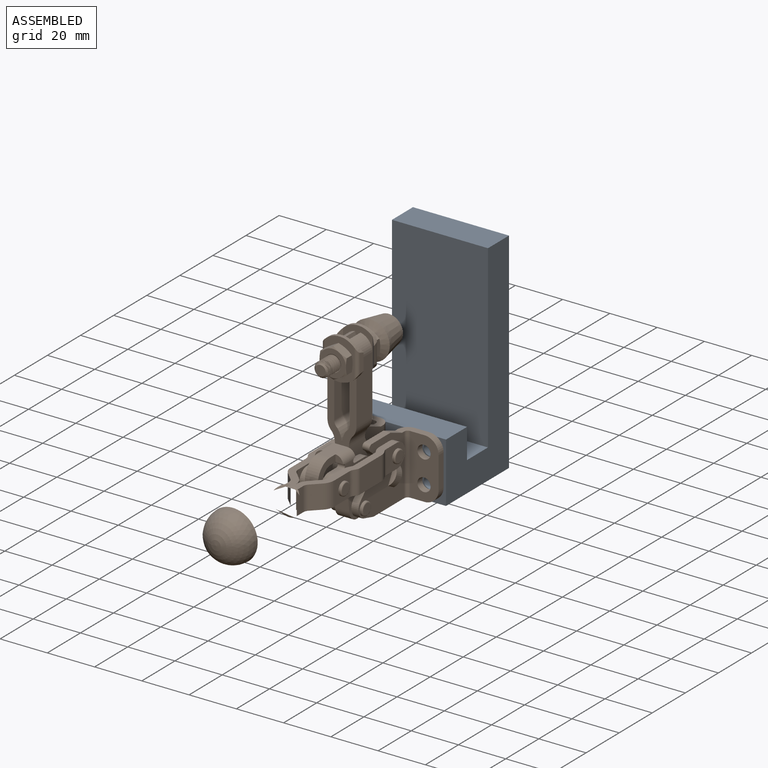
[diagram: assembled view]
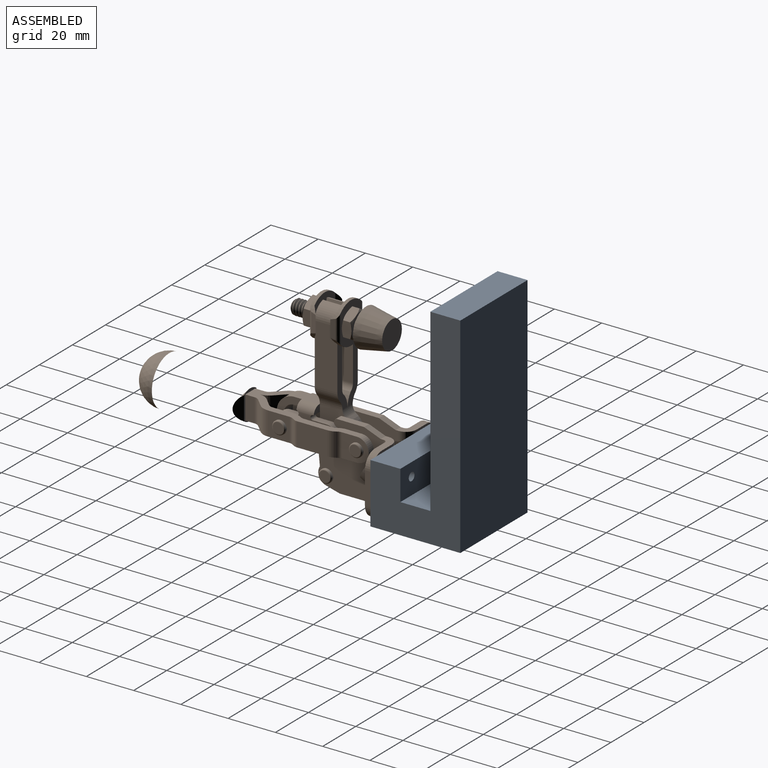
[diagram: assembled view, second angle]
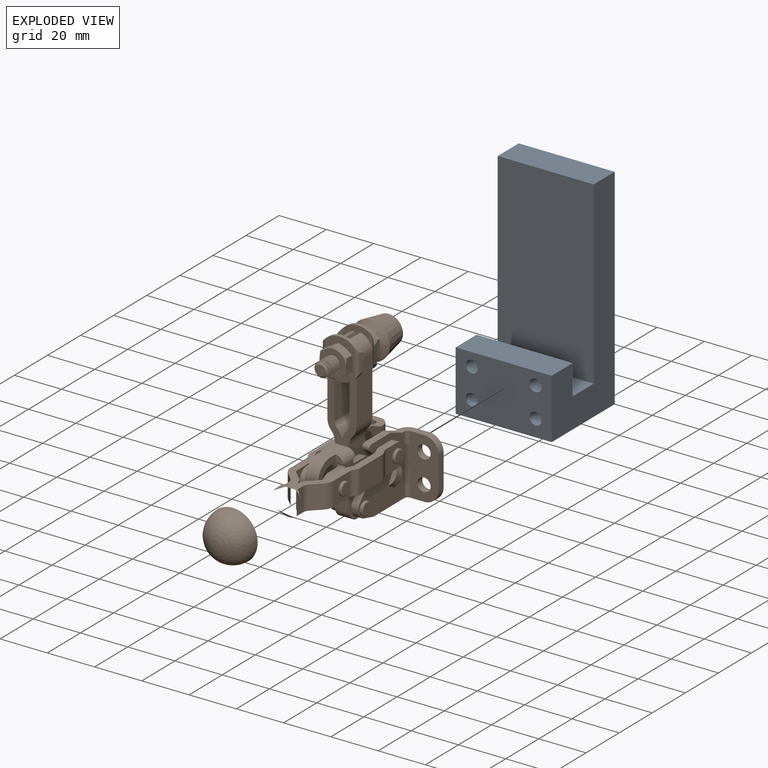
[diagram: exploded view]
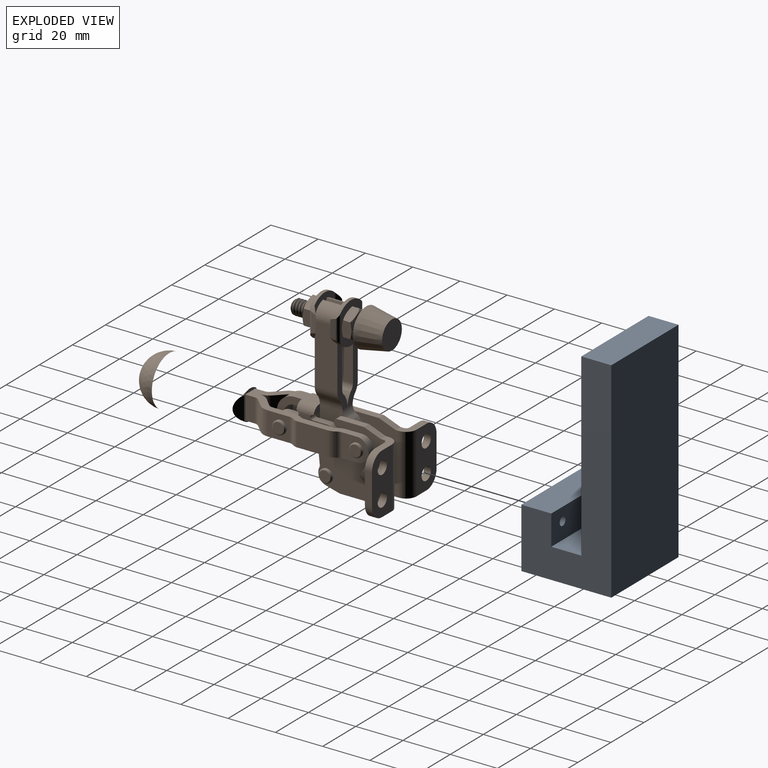
[diagram: exploded view, second angle]
ASSEMBLY  parts=2 mates=2
PART A: 18 faces, bbox 38.1x40.6x88.9 mm
  f0: plane 40.64x38.07mm, normal (0,0,-1), area 1547.3mm2, adj f1,f7,f8,f9
  f1: plane 88.9x40.64mm, normal (1,0,0), area 3612.9mm2, adj f0,f2,f8,f9
  f2: plane 40.64x12.69mm, normal (0,0,1), area 515.8mm2, adj f1,f3,f8,f9
  f3: plane 76.2x40.64mm, normal (-1,0,0), area 3096.8mm2, adj f2,f4,f8,f9
  f4: plane 40.64x12.69mm, normal (0,0,1), area 515.8mm2, adj f3,f5,f8,f9
  f5: plane 40.64x12.7mm, normal (1,0,0), area 497.5mm2, adj f4,f6,f8,f9,f10,f12
  f6: plane 40.64x12.69mm, normal (0,0,1), area 515.8mm2, adj f5,f7,f8,f9
  f7: plane 40.64x25.4mm, normal (-1,0,0), area 950.4mm2, adj f0,f6,f8,f9,f11,f13,f15,f17
  f8: plane 88.9x38.07mm, normal (0,-1,0), area 1611.8mm2, adj f0,f1,f2,f3,f4,f5,f6,f7
  f9: plane 88.9x38.07mm, normal (0,1,0), area 1611.8mm2, adj f0,f1,f2,f3,f4,f5,f6,f7
  f10: cone r=0mm half-angle=59deg, axis (-1,0,0), area 13mm2, adj f5,f11
  f11: cylinder r=2.55mm len=12.19mm, axis (-1,0,0), area 195.5mm2, adj f7,f10
  f12: cone r=0mm half-angle=59deg, axis (-1,0,0), area 13mm2, adj f5,f13
  f13: cylinder r=2.55mm len=12.19mm, axis (-1,0,0), area 195.5mm2, adj f7,f12
  f14: cone r=0mm half-angle=59deg, axis (-1,0,0), area 23.9mm2, adj f15
  f15: cylinder r=2.55mm len=12.19mm, axis (-1,0,0), area 195.5mm2, adj f7,f14
  f16: cone r=0mm half-angle=59deg, axis (-1,0,0), area 23.9mm2, adj f17
  f17: cylinder r=2.55mm len=12.19mm, axis (-1,0,0), area 195.5mm2, adj f7,f16
PART B: 289 faces, bbox 39.5x72.5x110.5 mm
  f0: plane 17.5x12.51mm, normal (0,0,-1), area 100.4mm2, adj f6,f7,f13,f14,f277,f278,f279,f280
  f1: plane 6.99x6.99mm, normal (0,0,-1), area 3.1mm2, adj f3,f78
  f2: plane 14.97x12.45mm, normal (0,0,1), area 42.6mm2, adj f3,f10,f12,f13,f14,f90,f91,f92
  f3: cylinder r=3.35mm len=6.7mm, axis (0,0,-1), area 31.6mm2, adj f1,f2,f11,f264,f266
  f4: plane 12x1.64mm, normal (0.71,0,0.71), area 22.8mm2, adj f5,f12,f13,f14
  f5: plane 8.23x1.98mm, normal (-0.99,0,-0.14), area 14.7mm2, adj f4,f6,f13,f14
  f6: cylinder r=1.5mm len=12.23mm, axis (0,-1,0), area 21.9mm2, adj f0,f5,f13,f14
  f7: cylinder r=1.5mm len=12.23mm, axis (0,-1,0), area 21.9mm2, adj f0,f8,f13,f14
  f8: plane 8.23x1.98mm, normal (0.99,0,-0.14), area 14.7mm2, adj f7,f9,f13,f14
  f9: plane 12x1.64mm, normal (-0.71,0,0.71), area 22.8mm2, adj f8,f10,f13,f14
  f10: cylinder r=0.2mm len=12.29mm, axis (0,-1,0), area 1.9mm2, adj f2,f9,f13,f14
  f11: plane 7.94x6.5mm, normal (0,0,1), area 38mm2, adj f3,f13,f94,f99
  f12: cylinder r=0.2mm len=12.29mm, axis (0,-1,0), area 1.9mm2, adj f2,f4,f13,f14
  f13: cylinder r=8.75mm len=16.02mm, axis (0,0,1), area 31.5mm2, adj f0,f2,f4,f5,f6,f7,f8,f9
  f14: cylinder r=8.75mm len=16.02mm, axis (0,0,1), area 31.5mm2, adj f0,f2,f4,f5,f6,f7,f8,f9
  f15: cylinder r=2.78mm len=5.56mm, axis (1,0,0), area 11.7mm2, adj f16,f51
  f16: torus R=2.28mm, axis (1,0,0), area 12.8mm2, adj f15,f17
  f17: plane 4.56x4.56mm, normal (-1,0,0), area 16.3mm2, adj f16
  f18: cylinder r=2.78mm len=5.56mm, axis (1,0,0), area 11.7mm2, adj f19,f38
  f19: torus R=2.28mm, axis (1,0,0), area 12.8mm2, adj f18,f20
  f20: plane 4.56x4.56mm, normal (1,0,0), area 16.3mm2, adj f19
  f21: plane 11.45x10mm, normal (1,0,0), area 95.7mm2, adj f22,f52,f201,f254,f257
  f22: cylinder r=6mm len=10mm, axis (0,1,0), area 31.4mm2, adj f21,f53,f254,f257
  f23: plane 12.78x10mm, normal (1,0,0), area 127.8mm2, adj f54,f55,f254,f257
  f24: cylinder r=6mm len=10mm, axis (0,1,0), area 31.4mm2, adj f25,f56,f254,f257
  f25: plane 10x9.25mm, normal (1,0,0), area 84.6mm2, adj f24,f26,f210,f254,f257
  f26: cylinder r=3mm len=10mm, axis (0,1,0), area 23.6mm2, adj f25,f27,f254,f257
  f27: plane 10x3.56mm, normal (0.71,0,-0.71), area 50.4mm2, adj f26,f28,f254,f257
  f28: cylinder r=6mm len=10mm, axis (0,1,0), area 47.1mm2, adj f27,f29,f254,f257
  f29: cylinder r=6mm len=10mm, axis (0,1,0), area 47.1mm2, adj f28,f30,f254,f257
  f30: plane 10x3.56mm, normal (-0.71,0,-0.71), area 50.4mm2, adj f29,f31,f254,f257
  f31: cylinder r=3mm len=10mm, axis (0,1,0), area 23.6mm2, adj f30,f32,f254,f257
  f32: plane 10x9.25mm, normal (-1,0,0), area 84.6mm2, adj f31,f33,f211,f254,f257
  f33: cylinder r=6mm len=10mm, axis (0,1,0), area 31.4mm2, adj f32,f57,f254,f257
  f34: plane 12.78x10mm, normal (-1,0,0), area 127.8mm2, adj f58,f59,f254,f257
  f35: cylinder r=6mm len=10mm, axis (0,1,0), area 31.4mm2, adj f36,f60,f254,f257
  f36: plane 11.45x10mm, normal (-1,0,0), area 95.7mm2, adj f35,f37,f186,f254,f257
  f37: cylinder r=5mm len=10mm, axis (-1,0,0), area 47.1mm2, adj f36,f38,f254,f257
  f38: plane 11.45x10mm, normal (1,0,0), area 79.5mm2, adj f18,f37,f61,f254,f257
  f39: cylinder r=6mm len=10mm, axis (0,1,0), area 31.4mm2, adj f40,f62,f254,f257
  f40: plane 12.84x10mm, normal (1,0,0), area 128.4mm2, adj f39,f63,f254,f257
  f41: plane 10x9.25mm, normal (1,0,0), area 68.3mm2, adj f42,f64,f65,f254,f257
  f42: cylinder r=6mm len=10mm, axis (0,1,0), area 47.1mm2, adj f41,f43,f254,f257
  f43: plane 10x3.56mm, normal (0.71,0,0.71), area 50.4mm2, adj f42,f44,f254,f257
  f44: cylinder r=3mm len=10mm, axis (0,1,0), area 23.6mm2, adj f43,f254,f255,f257
  f45: cylinder r=3mm len=10mm, axis (0,1,0), area 23.6mm2, adj f46,f254,f256,f257
  f46: plane 10x3.56mm, normal (-0.71,0,0.71), area 50.4mm2, adj f45,f47,f254,f257
  f47: cylinder r=6mm len=10mm, axis (0,1,0), area 47.1mm2, adj f46,f48,f254,f257
  f48: plane 10x9.25mm, normal (-1,0,0), area 68.3mm2, adj f47,f66,f67,f254,f257
  f49: plane 12.84x10mm, normal (-1,0,0), area 128.4mm2, adj f50,f68,f254,f257
  f50: cylinder r=6mm len=10mm, axis (0,1,0), area 31.4mm2, adj f49,f69,f254,f257
  f51: plane 11.45x10mm, normal (-1,0,0), area 79.5mm2, adj f15,f52,f70,f254,f257
  f52: cylinder r=5mm len=10mm, axis (-1,0,0), area 47.1mm2, adj f21,f51,f254,f257
  f53: plane 10x1.15mm, normal (0.87,0,0.5), area 13.3mm2, adj f22,f55,f254,f257
  f54: cylinder r=3mm len=10mm, axis (0,1,0), area 15.7mm2, adj f23,f56,f254,f257
  f55: cylinder r=0.25mm len=10mm, axis (0,1,0), area 1.3mm2, adj f23,f53,f254,f257
  f56: plane 10x0.51mm, normal (0.87,0,-0.5), area 5.9mm2, adj f24,f54,f254,f257
  f57: plane 10x0.51mm, normal (-0.87,0,-0.5), area 5.9mm2, adj f33,f59,f254,f257
  f58: cylinder r=0.25mm len=10mm, axis (0,1,0), area 1.3mm2, adj f34,f60,f254,f257
  f59: cylinder r=3mm len=10mm, axis (0,1,0), area 15.7mm2, adj f34,f57,f254,f257
  f60: plane 10x1.15mm, normal (-0.87,0,0.5), area 13.3mm2, adj f35,f58,f254,f257
  f61: cylinder r=3mm len=10mm, axis (0,1,0), area 15.7mm2, adj f38,f62,f254,f257
  f62: plane 10x0.51mm, normal (0.87,0,-0.5), area 5.9mm2, adj f39,f61,f254,f257
  f63: cylinder r=3mm len=10mm, axis (0,1,0), area 15.7mm2, adj f40,f71,f254,f257
  f64: cylinder r=2.78mm len=5.56mm, axis (1,0,0), area 11.7mm2, adj f41,f72
  f65: cylinder r=3mm len=10mm, axis (0,1,0), area 15.7mm2, adj f41,f71,f254,f257
  f66: cylinder r=2.78mm len=5.56mm, axis (1,0,0), area 11.7mm2, adj f48,f73
  f67: cylinder r=3mm len=10mm, axis (0,1,0), area 15.7mm2, adj f48,f74,f254,f257
  f68: cylinder r=3mm len=10mm, axis (0,1,0), area 15.7mm2, adj f49,f74,f254,f257
  f69: plane 10x0.51mm, normal (-0.87,0,-0.5), area 5.9mm2, adj f50,f70,f254,f257
  f70: cylinder r=3mm len=10mm, axis (0,1,0), area 15.7mm2, adj f51,f69,f254,f257
  f71: plane 10x1.21mm, normal (0.87,0,0.5), area 13.9mm2, adj f63,f65,f254,f257
  f72: torus R=2.28mm, axis (1,0,0), area 12.8mm2, adj f64,f75
  f73: torus R=2.28mm, axis (1,0,0), area 12.8mm2, adj f66,f76
  f74: plane 10x1.21mm, normal (-0.87,0,0.5), area 13.9mm2, adj f67,f68,f254,f257
  f75: plane 4.56x4.56mm, normal (1,0,0), area 16.3mm2, adj f72
  f76: plane 4.56x4.56mm, normal (-1,0,0), area 16.3mm2, adj f73
  f77: plane 6.84x6.8mm, normal (0,0,1), area 7.4mm2, adj f79,f146,f147,f148
  f78: cone r=3.49mm half-angle=60deg, axis (0,0,1), area 7.7mm2, adj f1,f79,f151
  f79: cylinder r=3.17mm len=6.35mm, axis (0,0,-1), area 54.9mm2, adj f77,f78,f147,f148
  f80: cylinder r=1.6mm len=6mm, axis (1,0,0), area 32.8mm2, adj f153,f154,f253
  f81: cylinder r=6.2mm len=9.63mm, axis (0,0,1), area 39.5mm2, adj f82,f89,f106,f153,f263
  f82: cylinder r=4mm len=6.04mm, axis (-1,0,0), area 23mm2, adj f81,f83,f96,f97,f105,f153,f154,f155
  f83: cylinder r=8mm len=9.08mm, axis (-1,0,0), area 61.5mm2, adj f82,f84,f155,f166
  f84: plane 14.49x6mm, normal (0,0.32,-0.95), area 91.6mm2, adj f83,f85,f155,f166
  f85: cylinder r=4.8mm len=9.33mm, axis (-1,0,0), area 78.4mm2, adj f84,f86,f153,f154,f155,f166
  f86: plane 15.48x6mm, normal (0,0.1,1), area 93.3mm2, adj f85,f87,f153,f154
  f87: cylinder r=5mm len=6mm, axis (-1,0,0), area 19.9mm2, adj f86,f88,f153,f154
  f88: cylinder r=4mm len=6mm, axis (-1,0,0), area 13.6mm2, adj f87,f106,f153,f154
  f89: cylinder r=6.15mm len=9.6mm, axis (0,0,1), area 46.8mm2, adj f81,f90,f106,f263
  f90: plane 25.05x9.6mm, normal (-1,0,0), area 240.5mm2, adj f2,f89,f91,f106,f145,f263
  f91: cylinder r=6.15mm len=9.6mm, axis (0,0,1), area 82mm2, adj f2,f90,f92,f145
  f92: plane 9.6x2.89mm, normal (0.98,-0.21,0), area 28.4mm2, adj f2,f91,f93,f145
  f93: cylinder r=3.25mm len=9.6mm, axis (0,0,1), area 44.2mm2, adj f2,f92,f94,f108,f145,f264
  f94: plane 25x9.6mm, normal (1,0,0), area 240mm2, adj f11,f93,f95,f106,f108,f134,f263,f264
  f95: cylinder r=3.25mm len=9.6mm, axis (0,0,1), area 30.2mm2, adj f94,f96,f106,f263
  f96: cylinder r=9.2mm len=9.63mm, axis (0,0,1), area 56.9mm2, adj f82,f95,f97,f106,f263
  f97: cylinder r=9.2mm len=9.63mm, axis (0,0,1), area 56.9mm2, adj f82,f96,f98,f106,f265
  f98: cylinder r=3.25mm len=9.6mm, axis (0,0,1), area 30.2mm2, adj f97,f99,f106,f265
  f99: plane 25x9.6mm, normal (-1,0,0), area 240mm2, adj f11,f98,f100,f106,f107,f134,f265,f266
  f100: cylinder r=3.25mm len=9.6mm, axis (0,0,1), area 44.2mm2, adj f2,f99,f101,f107,f145,f266
  f101: plane 9.6x2.89mm, normal (-0.98,-0.21,0), area 28.4mm2, adj f2,f100,f102,f145
  f102: cylinder r=6.15mm len=9.6mm, axis (0,0,1), area 82mm2, adj f2,f101,f103,f145
  f103: plane 25.05x9.6mm, normal (1,0,0), area 240.5mm2, adj f2,f102,f104,f106,f145,f265
  f104: cylinder r=6.15mm len=9.6mm, axis (0,0,1), area 46.8mm2, adj f103,f105,f106,f265
  f105: cylinder r=6.2mm len=9.63mm, axis (0,0,1), area 39.5mm2, adj f82,f104,f106,f154,f265
  f106: plane 31.26x12.3mm, normal (0,0,1), area 181.7mm2, adj f81,f88,f89,f90,f94,f95,f96,f97
  f107: plane 2.56x0.49mm, normal (0,0,1), area 0.1mm2, adj f99,f100,f142
  f108: plane 2.56x0.49mm, normal (0,0,1), area 0.1mm2, adj f93,f94,f142
  f109: cone r=5.59mm half-angle=60deg, axis (0,0,-1), area 3.1mm2, adj f124,f125,f126
  f110: cone r=5.59mm half-angle=60deg, axis (0,0,-1), area 3.1mm2, adj f124,f125,f130
  f111: cone r=5.59mm half-angle=60deg, axis (0,0,-1), area 3.1mm2, adj f124,f129,f130
  f112: cone r=5.59mm half-angle=60deg, axis (0,0,-1), area 3.1mm2, adj f124,f128,f129
  f113: cone r=5.59mm half-angle=60deg, axis (0,0,-1), area 3.1mm2, adj f124,f127,f128
  f114: cone r=5.59mm half-angle=60deg, axis (0,0,-1), area 3.1mm2, adj f124,f126,f127
  f115: cone r=3.49mm half-angle=60deg, axis (0,0,1), area 7.7mm2, adj f123,f124,f152
  f116: cone r=5.59mm half-angle=60deg, axis (0,0,1), area 3.1mm2, adj f129,f130,f144
  f117: cone r=5.59mm half-angle=60deg, axis (0,0,1), area 3.1mm2, adj f128,f129,f144
  f118: cone r=5.59mm half-angle=60deg, axis (0,0,1), area 3.1mm2, adj f127,f128,f144
  f119: cone r=5.59mm half-angle=60deg, axis (0,0,1), area 3.1mm2, adj f126,f127,f144
  f120: cone r=5.59mm half-angle=60deg, axis (0,0,1), area 3.1mm2, adj f125,f130,f144
  f121: cone r=5.59mm half-angle=60deg, axis (0,0,1), area 3.1mm2, adj f125,f126,f144
  f122: cone r=3.49mm half-angle=60deg, axis (0,0,-1), area 7.7mm2, adj f123,f143,f151
  f123: cylinder r=3.17mm len=6.35mm, axis (0,0,-1), area 64.6mm2, adj f115,f122,f147,f148
  f124: plane 11.18x11.18mm, normal (0,0,1), area 59.8mm2, adj f109,f110,f111,f112,f113,f114,f115
  f125: plane 6.12x4.6mm, normal (-0.5,-0.87,0), area 24mm2, adj f109,f110,f120,f121,f126,f130
  f126: plane 6.99x4.6mm, normal (-1,0,0), area 24mm2, adj f109,f114,f119,f121,f125,f127
  f127: plane 6.12x4.6mm, normal (-0.5,0.87,0), area 24mm2, adj f113,f114,f118,f119,f126,f128
  f128: plane 6.12x4.6mm, normal (0.5,0.87,0), area 24mm2, adj f112,f113,f117,f118,f127,f129
  f129: plane 6.99x4.6mm, normal (1,0,0), area 24mm2, adj f111,f112,f116,f117,f128,f130
  f130: plane 6.12x4.6mm, normal (0.5,-0.87,0), area 24mm2, adj f110,f111,f116,f120,f125,f129
  f131: cylinder r=8.75mm len=16.02mm, axis (0,0,-1), area 31.5mm2, adj f106,f133,f134,f135,f136,f137,f138,f139
  f132: cylinder r=8.75mm len=16.02mm, axis (0,0,-1), area 31.5mm2, adj f133,f135,f136,f137,f138,f139,f140,f141
  f133: cylinder r=0.2mm len=12.29mm, axis (0,1,0), area 1.9mm2, adj f131,f132,f141,f145
  f134: plane 7.94x6.5mm, normal (0,0,-1), area 38mm2, adj f94,f99,f131,f142
  f135: cylinder r=0.2mm len=12.29mm, axis (0,1,0), area 1.9mm2, adj f131,f132,f136,f145
  f136: plane 12x1.64mm, normal (-0.71,0,-0.71), area 22.8mm2, adj f131,f132,f135,f137
  f137: plane 8.23x1.98mm, normal (0.99,0,0.14), area 14.7mm2, adj f131,f132,f136,f138
  f138: cylinder r=1.5mm len=12.23mm, axis (0,1,0), area 21.9mm2, adj f131,f132,f137,f144
  f139: cylinder r=1.5mm len=12.23mm, axis (0,1,0), area 21.9mm2, adj f131,f132,f140,f144
  f140: plane 8.23x1.98mm, normal (-0.99,0,0.14), area 14.7mm2, adj f131,f132,f139,f141
  f141: plane 12x1.64mm, normal (0.71,0,-0.71), area 22.8mm2, adj f131,f132,f133,f140
  f142: cylinder r=3.35mm len=6.7mm, axis (0,0,1), area 31.6mm2, adj f107,f108,f134,f143,f145
  f143: plane 6.99x6.99mm, normal (0,0,1), area 3.1mm2, adj f122,f142
  f144: plane 17.5x12.51mm, normal (0,0,1), area 100.4mm2, adj f116,f117,f118,f119,f120,f121,f131,f132
  f145: plane 14.97x12.45mm, normal (0,0,-1), area 42.6mm2, adj f90,f91,f92,f93,f100,f101,f102,f103
  f146: cylinder r=2.35mm len=27.29mm, axis (0,0,-1), area 120.5mm2, adj f77,f147,f148,f150
  f147: bspline ~28.46x7.49mm, area 353.7mm2, adj f77,f79,f123,f146,f150,f151,f152
  f148: bspline ~28.03x7.49mm, area 350.5mm2, adj f77,f79,f123,f146,f150,f151,f152
  f149: plane 4.43x4.43mm, normal (0,0,1), area 15.4mm2, adj f150
  f150: cone r=2.21mm half-angle=45deg, axis (0,0,-1), area 12.5mm2, adj f146,f147,f148,f149,f152
  f151: cylinder r=3.17mm len=12.97mm, axis (0,0,1), area 32.1mm2, adj f78,f122,f147,f148
  f152: cylinder r=3.17mm len=6.66mm, axis (0,0,1), area 14.6mm2, adj f115,f147,f148,f150
  f153: plane 29.6x12.99mm, normal (-1,0,0), area 210.2mm2, adj f80,f81,f82,f85,f86,f87,f88,f106
  f154: plane 29.6x12.99mm, normal (1,0,0), area 210.2mm2, adj f80,f82,f85,f86,f87,f88,f105,f106
  f155: plane 28.2x22.3mm, normal (-1,0,0), area 459.9mm2, adj f82,f83,f84,f85,f156,f157,f158,f163
  f156: cylinder r=1.6mm len=6mm, axis (1,0,0), area 60.3mm2, adj f155,f166
  f157: plane 7.03x3mm, normal (0,-0.93,-0.36), area 22.6mm2, adj f155,f158,f167,f168
  f158: plane 11.3x3mm, normal (0,-1,0), area 33.9mm2, adj f154,f155,f157,f159,f168
  f159: cylinder r=1.5mm len=3mm, axis (-1,0,0), area 11.7mm2, adj f154,f158,f160,f168
  f160: cylinder r=6mm len=9.35mm, axis (-1,0,0), area 32.5mm2, adj f154,f159,f161,f168
  f161: plane 7.15x7.15mm, normal (0,-0.71,0.71), area 30.3mm2, adj f154,f160,f162,f168
  f162: cylinder r=4.4mm len=7.26mm, axis (-1,0,0), area 26.6mm2, adj f154,f161,f163,f168
  f163: plane 6.18x3mm, normal (0,0.97,0.26), area 19.2mm2, adj f154,f155,f162,f164,f168
  f164: plane 23.1x10.5mm, normal (0,1,0), area 87.9mm2, adj f155,f163,f165,f168,f169,f170,f171,f172
  f165: cylinder r=4.5mm len=25.5mm, axis (0,1,0), area 180.2mm2, adj f155,f164,f167,f172
  f166: plane 28.2x22.3mm, normal (1,0,0), area 459.9mm2, adj f82,f83,f84,f85,f156,f173,f174,f175
  f167: plane 10.5x5.77mm, normal (0,-1,0), area 35.9mm2, adj f155,f157,f165,f168,f169,f170,f172,f182
  f168: plane 28.2x27.7mm, normal (1,0,0), area 548.4mm2, adj f157,f158,f159,f160,f161,f162,f163,f164
  f169: cylinder r=1.5mm len=25.5mm, axis (0,1,0), area 60.1mm2, adj f164,f167,f168,f170
  f170: plane 25.5x12mm, normal (0,0,1), area 241.3mm2, adj f164,f167,f169,f171,f182,f188,f189,f190
  f171: cylinder r=6mm len=6mm, axis (0,0,-1), area 28.3mm2, adj f164,f170,f172,f189
  f172: plane 25.5x12mm, normal (0,0,-1), area 241.3mm2, adj f164,f165,f167,f171,f182,f188,f189,f190
  f173: plane 11.3x3mm, normal (0,-1,0), area 33.9mm2, adj f153,f166,f174,f181,f191
  f174: plane 7.03x3mm, normal (0,-0.93,-0.36), area 22.6mm2, adj f166,f173,f191,f192
  f175: cylinder r=4.5mm len=25.5mm, axis (0,1,0), area 180.2mm2, adj f166,f176,f192,f193
  f176: plane 23.1x10.5mm, normal (0,1,0), area 87.9mm2, adj f166,f175,f177,f191,f193,f194,f195,f196
  f177: plane 6.18x3mm, normal (0,0.97,0.26), area 19.2mm2, adj f153,f166,f176,f178,f191
  f178: cylinder r=4.4mm len=7.26mm, axis (-1,0,0), area 26.6mm2, adj f153,f177,f179,f191
  f179: plane 7.15x7.15mm, normal (0,-0.71,0.71), area 30.3mm2, adj f153,f178,f180,f191
  f180: cylinder r=6mm len=9.35mm, axis (-1,0,0), area 32.5mm2, adj f153,f179,f181,f191
  f181: cylinder r=1.5mm len=3mm, axis (-1,0,0), area 11.7mm2, adj f153,f173,f180,f191
  f182: cylinder r=6mm len=6mm, axis (0,0,-1), area 28.3mm2, adj f167,f170,f172,f189
  f183: plane 7.06x3.76mm, normal (0,0.47,-0.88), area 11.2mm2, adj f168,f184
  f184: cylinder r=5mm len=8.85mm, axis (0,-0.47,0.88), area 35.2mm2, adj f168,f183,f185
  f185: plane 7.06x3.76mm, normal (0,-0.47,0.88), area 11.2mm2, adj f168,f184
  f186: cylinder r=1.6mm len=3.2mm, axis (1,0,0), area 2mm2, adj f36,f168
  f187: cylinder r=2.78mm len=5.56mm, axis (1,0,0), area 11.7mm2, adj f168,f197
  f188: cylinder r=2.8mm len=5.6mm, axis (0,0,-1), area 52.8mm2, adj f170,f172
  f189: plane 13.5x3mm, normal (1,0,0), area 40.5mm2, adj f170,f171,f172,f182
  f190: cylinder r=2.8mm len=5.6mm, axis (0,0,-1), area 52.8mm2, adj f170,f172
  f191: plane 28.2x27.7mm, normal (-1,0,0), area 548.4mm2, adj f173,f174,f176,f177,f178,f179,f180,f181
  f192: plane 10.5x5.77mm, normal (0,-1,0), area 35.9mm2, adj f166,f174,f175,f191,f193,f195,f196,f203
  f193: plane 25.5x12mm, normal (0,0,-1), area 241.3mm2, adj f175,f176,f192,f194,f203,f204,f205,f206
  f194: cylinder r=6mm len=6mm, axis (0,0,-1), area 28.3mm2, adj f176,f193,f195,f205
  f195: plane 25.5x12mm, normal (0,0,1), area 241.3mm2, adj f176,f192,f194,f196,f203,f204,f205,f206
  f196: cylinder r=1.5mm len=25.5mm, axis (0,1,0), area 60.1mm2, adj f176,f191,f192,f195
  f197: torus R=2.28mm, axis (1,0,0), area 12.8mm2, adj f187,f207
  f198: plane 7.06x3.76mm, normal (0,0.47,-0.88), area 11.2mm2, adj f191,f199
  f199: cylinder r=5mm len=8.85mm, axis (0,0.47,-0.88), area 35.2mm2, adj f191,f198,f200
  f200: plane 7.06x3.76mm, normal (0,-0.47,0.88), area 11.2mm2, adj f191,f199
  f201: cylinder r=1.6mm len=3.2mm, axis (1,0,0), area 2mm2, adj f21,f191
  f202: cylinder r=2.78mm len=5.56mm, axis (1,0,0), area 11.7mm2, adj f191,f208
  f203: cylinder r=6mm len=6mm, axis (0,0,-1), area 28.3mm2, adj f192,f193,f195,f205
  f204: cylinder r=2.8mm len=5.6mm, axis (0,0,-1), area 52.8mm2, adj f193,f195
  f205: plane 13.5x3mm, normal (-1,0,0), area 40.5mm2, adj f193,f194,f195,f203
  f206: cylinder r=2.8mm len=5.6mm, axis (0,0,1), area 52.8mm2, adj f193,f195
  f207: plane 4.56x4.56mm, normal (1,0,0), area 16.3mm2, adj f197
  f208: torus R=2.28mm, axis (1,0,0), area 12.8mm2, adj f202,f209
  f209: plane 4.56x4.56mm, normal (-1,0,0), area 16.3mm2, adj f208
  f210: cylinder r=1.58mm len=3.17mm, axis (1,0,0), area 1.2mm2, adj f25,f223
  f211: cylinder r=1.58mm len=3.17mm, axis (1,0,0), area 1.2mm2, adj f32,f240
  f212: cylinder r=1.58mm len=6.15mm, axis (1,0,0), area 61.2mm2, adj f213,f222
  f213: plane 26.5x10.5mm, normal (1,0,0), area 213.3mm2, adj f212,f214,f215,f216,f217,f218,f219,f220
  f214: cylinder r=1mm len=3.5mm, axis (1,0,0), area 9.7mm2, adj f213,f215,f221,f223,f224,f225,f235
  f215: plane 4.65x3mm, normal (0,-1,0), area 14mm2, adj f213,f214,f216,f223
  f216: cylinder r=4.5mm len=9mm, axis (1,0,0), area 42.4mm2, adj f213,f215,f217,f223
  f217: plane 17.5x3mm, normal (0,1,0), area 52.5mm2, adj f213,f216,f218,f223
  f218: cylinder r=4.5mm len=9mm, axis (1,0,0), area 42.4mm2, adj f213,f217,f219,f223
  f219: plane 5.85x3mm, normal (0,-1,0), area 17.6mm2, adj f213,f218,f220,f223
  f220: cylinder r=1mm len=3.5mm, axis (1,0,0), area 9.7mm2, adj f213,f219,f221,f223,f225,f235
  f221: cylinder r=0.5mm len=7mm, axis (0,0,-1), area 4.8mm2, adj f213,f214,f220,f225
  f222: plane 26.5x10.5mm, normal (-1,0,0), area 213.3mm2, adj f212,f226,f227,f228,f229,f230,f231,f232
  f223: plane 26.5x10.5mm, normal (-1,0,0), area 196.9mm2, adj f210,f214,f215,f216,f217,f218,f219,f220
  f224: plane 3.29x3mm, normal (0,0,1), area 7.4mm2, adj f214,f235,f236
  f225: plane 12.08x10.5mm, normal (0,1,0), area 57.6mm2, adj f214,f220,f221,f226,f227,f228,f235,f236
  f226: cylinder r=1mm len=3.5mm, axis (1,0,0), area 9.7mm2, adj f222,f225,f227,f233,f240,f241,f246
  f227: cylinder r=0.5mm len=7mm, axis (0,0,-1), area 4.8mm2, adj f222,f225,f226,f228
  f228: cylinder r=1mm len=3.5mm, axis (1,0,0), area 9.7mm2, adj f222,f225,f227,f229,f240,f246
  f229: plane 5.85x3mm, normal (0,-1,0), area 17.5mm2, adj f222,f228,f230,f240
  f230: cylinder r=4.5mm len=9mm, axis (1,0,0), area 42.4mm2, adj f222,f229,f231,f240
  f231: plane 17.5x3mm, normal (0,1,0), area 52.5mm2, adj f222,f230,f232,f240
  f232: cylinder r=4.5mm len=9mm, axis (1,0,0), area 42.4mm2, adj f222,f231,f233,f240
  f233: plane 4.65x3mm, normal (0,-1,0), area 13.9mm2, adj f222,f226,f232,f240
  f234: cylinder r=2.78mm len=5.56mm, axis (1,0,0), area 11.7mm2, adj f223,f242
  f235: cylinder r=3.5mm len=10.76mm, axis (0,0,-1), area 40.4mm2, adj f214,f220,f223,f224,f225,f236,f239,f243
  f236: plane 10.65x9mm, normal (-1,0,0), area 42.2mm2, adj f224,f225,f235,f238,f244,f245,f247,f250
  f237: plane 10.65x9mm, normal (1,0,0), area 42.2mm2, adj f225,f238,f241,f244,f245,f246,f247,f250
  f238: cylinder r=4.5mm len=5.5mm, axis (1,0,0), area 38.9mm2, adj f225,f236,f237,f247
  f239: plane 12.08x3mm, normal (0,0,-1), area 31.2mm2, adj f225,f235,f243,f246
  f240: plane 26.5x10.5mm, normal (1,0,0), area 196.9mm2, adj f211,f226,f228,f229,f230,f231,f232,f233
  f241: plane 3.29x3mm, normal (0,0,1), area 7.4mm2, adj f226,f237,f246
  f242: torus R=2.28mm, axis (1,0,0), area 12.8mm2, adj f234,f249
  f243: plane 10.5x5.15mm, normal (0,-1,0), area 54.1mm2, adj f235,f239,f245,f246
  f244: plane 5.5x3mm, normal (0,1,0), area 16.5mm2, adj f236,f237,f247,f250
  f245: cylinder r=7.5mm len=7.5mm, axis (1,0,0), area 64.8mm2, adj f235,f236,f237,f243,f246,f250
  f246: cylinder r=3.5mm len=10.76mm, axis (0,0,-1), area 40.4mm2, adj f225,f226,f228,f237,f239,f240,f241,f243
  f247: plane 5.5x1.5mm, normal (0,0,-1), area 8.2mm2, adj f236,f237,f238,f244
  f248: cylinder r=2.78mm len=5.56mm, axis (1,0,0), area 11.7mm2, adj f240,f251
  f249: plane 4.56x4.56mm, normal (-1,0,0), area 16.3mm2, adj f242
  f250: plane 5.5x1.5mm, normal (0,0,1), area 8.2mm2, adj f236,f237,f244,f245
  f251: torus R=2.28mm, axis (1,0,0), area 12.8mm2, adj f248,f252
  f252: plane 4.56x4.56mm, normal (1,0,0), area 16.3mm2, adj f251
  f253: cylinder r=1.58mm len=6.15mm, axis (1,0,0), area 31.6mm2, adj f80,f153,f154,f213,f222
  f254: plane 51.6x21.4mm, normal (0,1,0), area 326.4mm2, adj f21,f22,f23,f24,f25,f26,f27,f28
  f255: plane 10x3.91mm, normal (1,0,0), area 39.1mm2, adj f44,f254,f257,f262
  f256: plane 10x3.91mm, normal (-1,0,0), area 39.1mm2, adj f45,f254,f257,f262
  f257: plane 51.6x21.4mm, normal (0,-1,0), area 326.4mm2, adj f21,f22,f23,f24,f25,f26,f27,f28
  f258: plane 10x2.85mm, normal (0.71,0,-0.71), area 28.6mm2, adj f260,f262
  f259: plane 10x2.85mm, normal (-0.71,0,-0.71), area 28.6mm2, adj f260,f262
  f260: cone r=6.6mm half-angle=7.1deg, axis (0,0,1), area 1774.5mm2, adj f258,f259,f261,f262
  f261: sphere r=10.5mm, area 692.7mm2, adj f260
  f262: plane 12.5x7.5mm, normal (0,0,-1), area 27.8mm2, adj f254,f255,f256,f257,f258,f259,f260
  f263: plane 26.26x6.14mm, normal (0,0,-1), area 75.8mm2, adj f13,f81,f82,f89,f90,f94,f95,f96
  f264: plane 2.56x0.49mm, normal (0,0,-1), area 0.1mm2, adj f3,f93,f94
  f265: plane 26.26x6.14mm, normal (0,0,-1), area 75.8mm2, adj f13,f82,f97,f98,f99,f103,f104,f105
  f266: plane 2.56x0.49mm, normal (0,0,-1), area 0.1mm2, adj f3,f99,f100
  f267: cone r=3.17mm half-angle=57.7deg, axis (0,0,-1), area 167.8mm2, adj f269,f276
  f268: plane 11.94x11.94mm, normal (0,0,-1), area 111.9mm2, adj f269
  f269: cone r=8mm half-angle=10.5deg, axis (0,0,1), area 487.6mm2, adj f267,f268
  f270: plane 6.12x4.6mm, normal (0.5,-0.87,0), area 24mm2, adj f271,f275,f277,f282,f286,f287
  f271: plane 6.99x4.6mm, normal (1,0,0), area 24mm2, adj f270,f272,f281,f282,f285,f286
  f272: plane 6.12x4.6mm, normal (0.5,0.87,0), area 24mm2, adj f271,f273,f280,f281,f284,f285
  f273: plane 6.12x4.6mm, normal (-0.5,0.87,0), area 24mm2, adj f272,f274,f279,f280,f283,f284
  f274: plane 6.99x4.6mm, normal (-1,0,0), area 24mm2, adj f273,f275,f278,f279,f283,f288
  f275: plane 6.12x4.6mm, normal (-0.5,-0.87,0), area 24mm2, adj f270,f274,f277,f278,f287,f288
  f276: plane 11.18x11.18mm, normal (0,0,-1), area 38.8mm2, adj f267,f283,f284,f285,f286,f287,f288
  f277: cone r=5.59mm half-angle=60deg, axis (0,0,-1), area 3.1mm2, adj f0,f270,f275
  f278: cone r=5.59mm half-angle=60deg, axis (0,0,-1), area 3.1mm2, adj f0,f274,f275
  f279: cone r=5.59mm half-angle=60deg, axis (0,0,-1), area 3.1mm2, adj f0,f273,f274
  f280: cone r=5.59mm half-angle=60deg, axis (0,0,-1), area 3.1mm2, adj f0,f272,f273
  f281: cone r=5.59mm half-angle=60deg, axis (0,0,-1), area 3.1mm2, adj f0,f271,f272
  f282: cone r=5.59mm half-angle=60deg, axis (0,0,-1), area 3.1mm2, adj f0,f270,f271
  f283: cone r=5.59mm half-angle=60deg, axis (0,0,1), area 3.1mm2, adj f273,f274,f276
  f284: cone r=5.59mm half-angle=60deg, axis (0,0,1), area 3.1mm2, adj f272,f273,f276
  f285: cone r=5.59mm half-angle=60deg, axis (0,0,1), area 3.1mm2, adj f271,f272,f276
  f286: cone r=5.59mm half-angle=60deg, axis (0,0,1), area 3.1mm2, adj f270,f271,f276
  f287: cone r=5.59mm half-angle=60deg, axis (0,0,1), area 3.1mm2, adj f270,f275,f276
  f288: cone r=5.59mm half-angle=60deg, axis (0,0,1), area 3.1mm2, adj f274,f275,f276
PLACE A rot(axis=(0,0,1),90deg) t=(-113.27,-68.6,5.27)mm
PLACE B rot(axis=(0,-0.71,0.71),180deg) t=(-93.14,-106.67,6.1)mm
MATE cylindrical A.f10 <-> B.f188  axis (0,-1,0) through (-106.44,-106.67,25.1)mm
MATE planar A.f7 <-> B.f193  axis (0,-1,0) through (-92.95,-106.67,17.9)mm
